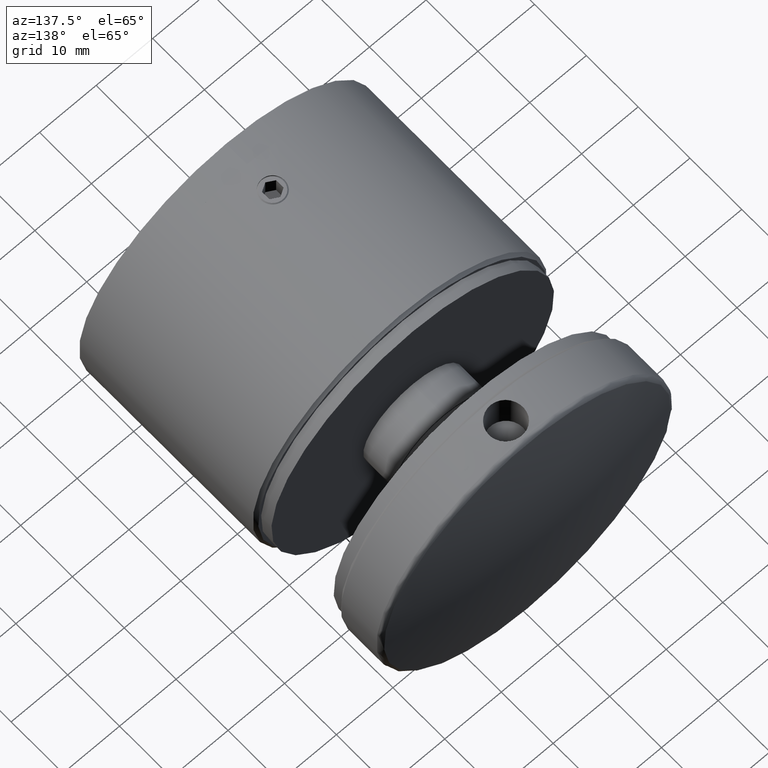
[diagram: clean part render]
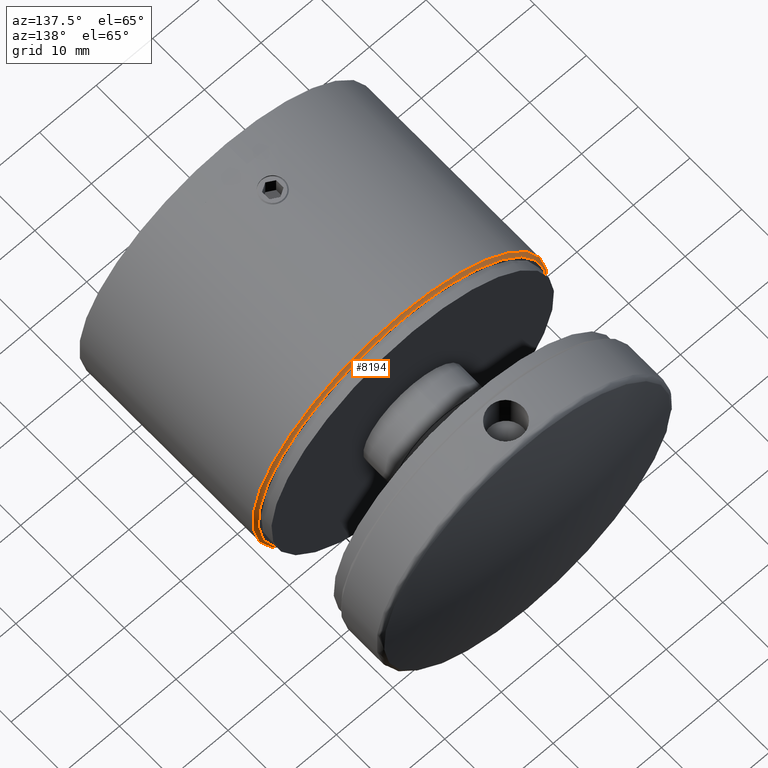
[diagram: same view with one face highlighted and labeled with its STEP entity id]
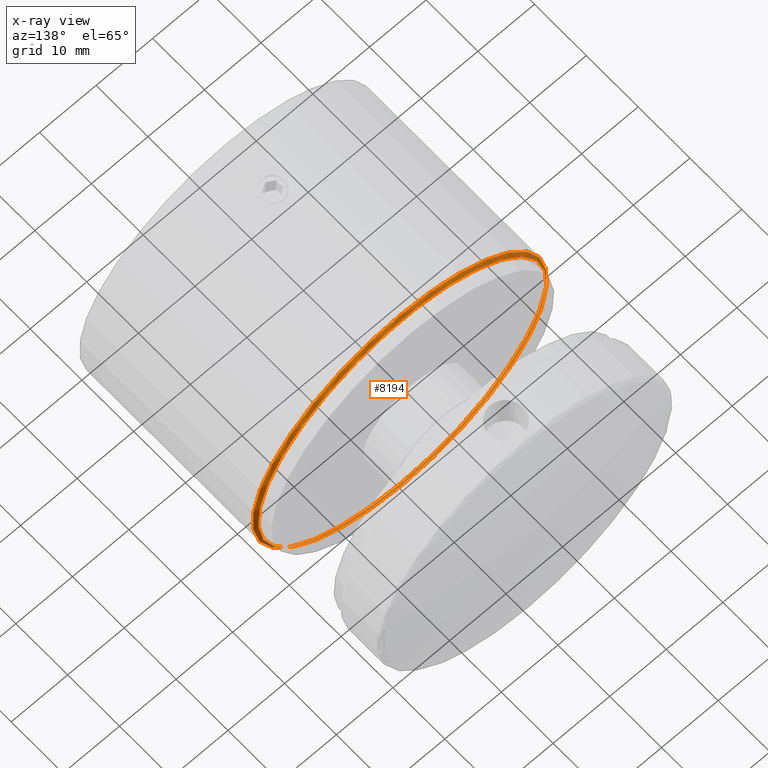
[diagram: x-ray of the same camera — body ghosted, the highlighted face saturated]
A machine part, auxiliary view. The second image highlights one B-rep face of the part: STEP entity #8194.
The next image is the same camera in x-ray: the body ghosted, the highlighted face saturated — about 16% of this face is hidden behind the body in this view.
In plain terms, the highlighted conical surface has half-angle 45 deg.
Its self-contained STEP definition (entity closure, byte-faithful):
#1989 = CONICAL_SURFACE ( 'NONE', #11150, 25.99999999999999300, 0.7853981633974482800 ) ;
#2473 = ORIENTED_EDGE ( 'NONE', *, *, #16479, .F. ) ;
#3202 = CARTESIAN_POINT ( 'NONE',  ( 0.0000000000000000000, 30.00000000000000000, -25.49999999999999300 ) ) ;
#3637 = AXIS2_PLACEMENT_3D ( 'NONE', #8860, #11829, #8795 ) ;
#3763 = DIRECTION ( 'NONE',  ( -0.0000000000000000000, -1.000000000000000000, -0.0000000000000000000 ) ) ;
#5285 = DIRECTION ( 'NONE',  ( -0.0000000000000000000, -1.000000000000000000, -0.0000000000000000000 ) ) ;
#5554 = VERTEX_POINT ( 'NONE', #19148 ) ;
#6627 = EDGE_LOOP ( 'NONE', ( #12676 ) ) ;
#8194 = ADVANCED_FACE ( 'NONE', ( #19037, #9290 ), #1989, .T. ) ;
#8492 = DIRECTION ( 'NONE',  ( 0.0000000000000000000, 0.0000000000000000000, -1.000000000000000000 ) ) ;
#8795 = DIRECTION ( 'NONE',  ( 0.0000000000000000000, 0.0000000000000000000, -1.000000000000000000 ) ) ;
#8860 = CARTESIAN_POINT ( 'NONE',  ( 0.0000000000000000000, 30.00000000000000000, 0.0000000000000000000 ) ) ;
#8906 = AXIS2_PLACEMENT_3D ( 'NONE', #19760, #3763, #13277 ) ;
#9290 = FACE_OUTER_BOUND ( 'NONE', #20483, .T. ) ;
#10074 = VERTEX_POINT ( 'NONE', #3202 ) ;
#10629 = CIRCLE ( 'NONE', #8906, 25.99999999999999300 ) ;
#11122 = EDGE_CURVE ( 'NONE', #10074, #10074, #18437, .T. ) ;
#11150 = AXIS2_PLACEMENT_3D ( 'NONE', #14849, #5285, #8492 ) ;
#11829 = DIRECTION ( 'NONE',  ( -0.0000000000000000000, -1.000000000000000000, -0.0000000000000000000 ) ) ;
#12676 = ORIENTED_EDGE ( 'NONE', *, *, #11122, .T. ) ;
#13277 = DIRECTION ( 'NONE',  ( 0.0000000000000000000, 0.0000000000000000000, -1.000000000000000000 ) ) ;
#14849 = CARTESIAN_POINT ( 'NONE',  ( 0.0000000000000000000, 29.50000000000000000, 0.0000000000000000000 ) ) ;
#16479 = EDGE_CURVE ( 'NONE', #5554, #5554, #10629, .T. ) ;
#18437 = CIRCLE ( 'NONE', #3637, 25.49999999999999300 ) ;
#19037 = FACE_BOUND ( 'NONE', #6627, .T. ) ;
#19148 = CARTESIAN_POINT ( 'NONE',  ( 0.0000000000000000000, 29.50000000000000000, -25.99999999999999300 ) ) ;
#19760 = CARTESIAN_POINT ( 'NONE',  ( 0.0000000000000000000, 29.50000000000000000, 0.0000000000000000000 ) ) ;
#20483 = EDGE_LOOP ( 'NONE', ( #2473 ) ) ;